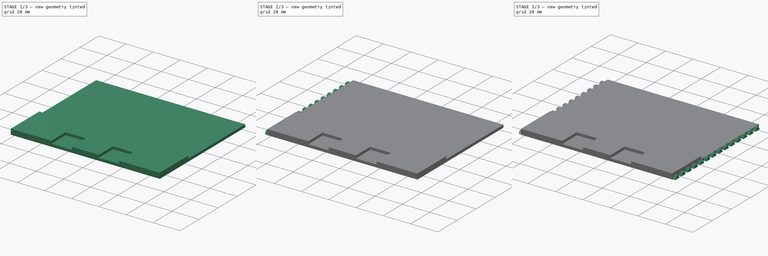
[diagram: build sequence overview — one tinted view per stage of 3, left to right]
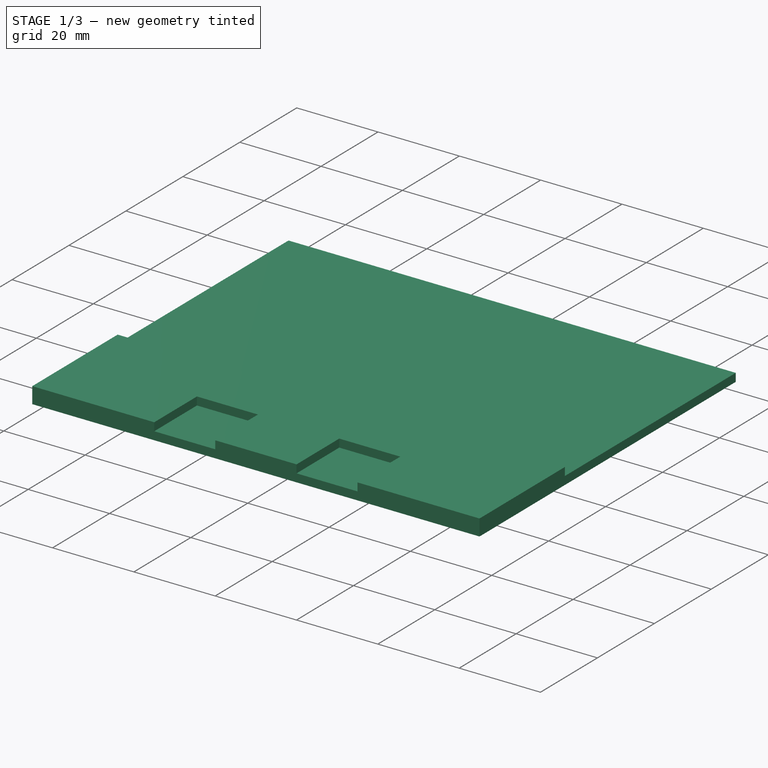
[diagram: stage 1 of 3 — iso view after this stage's code; geometry added in this stage tinted green]
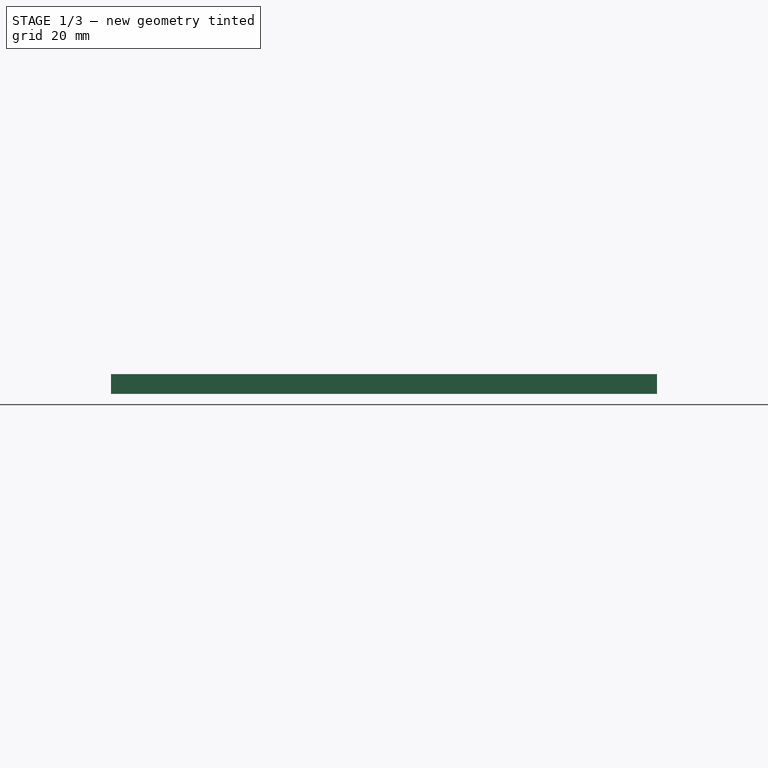
[diagram: stage 1 of 3 — front view after this stage's code; geometry added in this stage tinted green]
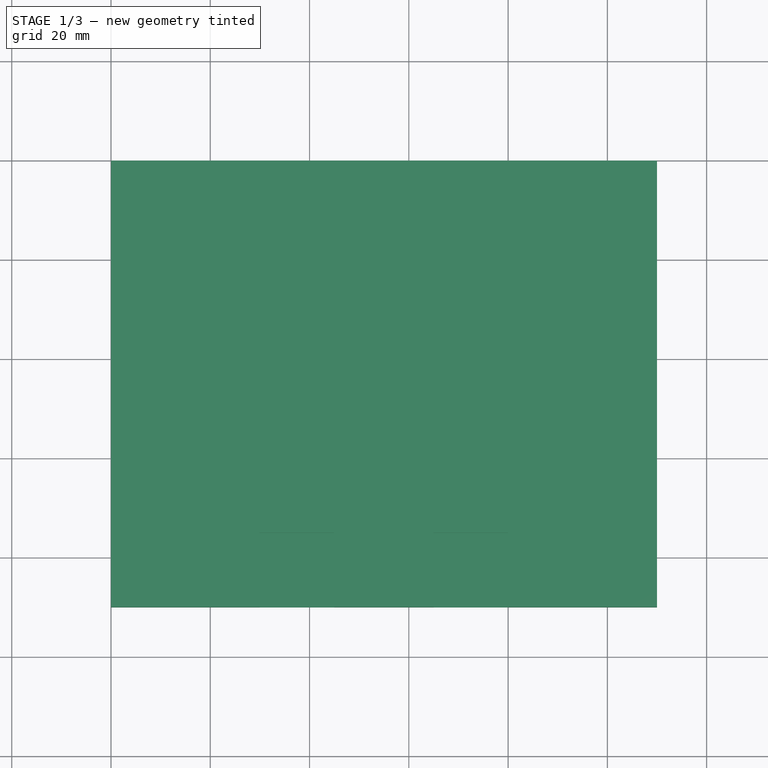
[diagram: stage 1 of 3 — top view after this stage's code; geometry added in this stage tinted green]
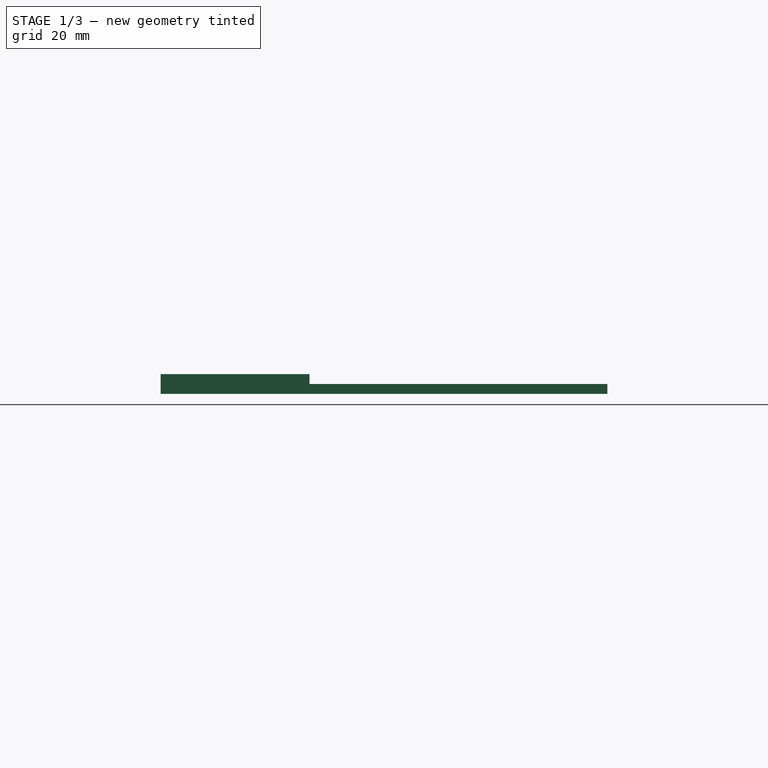
[diagram: stage 1 of 3 — right view after this stage's code; geometry added in this stage tinted green]
FCSTD DOCUMENT  (FreeCAD 0.19R24291 (Git))
Label: bunkerFrontSide
License: All rights reserved
LicenseURL: http://en.wikipedia.org/wiki/All_rights_reserved
objects: Sketcher::SketchObject×4, PartDesign::Pad×4, PartDesign::LinearPattern×2, PartDesign::Plane×1, PartDesign::Body×1
note: 16 computed .brp shape members not serialized (recipe doc carries the construction recipe); baked Part::Feature solids carry a one-line shape summary decoded from their .brp

FEATURE [Sketcher::SketchObject] Sketch
  FullyConstrained = true
  MapMode = 5
  Support = -> [XY_Plane]
  sketch-geometry (4):
    g0: LineSegment StartX=0 StartY=0 StartZ=0 EndX=110 EndY=0 EndZ=0
    g1: LineSegment StartX=110 StartY=0 StartZ=0 EndX=110 EndY=-90 EndZ=0
    g2: LineSegment StartX=110 StartY=-90 StartZ=0 EndX=0 EndY=-90 EndZ=0
    g3: LineSegment StartX=0 StartY=-90 StartZ=0 EndX=0 EndY=0 EndZ=0
  constraints (11):
    c: Coincident(g0,g1)
    c: Coincident(g1,g2)
    c: Coincident(g2,g3)
    c: Coincident(g3,g0)
    c: Horizontal(g0)
    c: Horizontal(g2)
    c: Vertical(g1)
    c: Vertical(g3)
    c: Coincident(g0,g-1)
    c: Distance(g1) = 90
    c: Distance(g0) = 110
FEATURE [PartDesign::Pad] Pad
  Direction = (1,1,1)
  Length = 2
  Length2 = 100
  Profile = -> Sketch
  Type = 0
FEATURE [Sketcher::SketchObject] Sketch001
  ExternalGeometry = -> [Pad]
  FullyConstrained = true
  MapMode = 5
  Placement = pos=(0,0,2) rot=(0,0,1;0rad)
  Support = -> [Pad]
  sketch-geometry (12):
    g0: LineSegment StartX=110 StartY=-90 StartZ=0 EndX=110 EndY=-60 EndZ=0
    g1: LineSegment StartX=110 StartY=-60 StartZ=0 EndX=0 EndY=-60 EndZ=0
    g2: LineSegment StartX=0 StartY=-60 StartZ=0 EndX=0 EndY=-90 EndZ=0
    g3: LineSegment StartX=0 StartY=-90 StartZ=0 EndX=30 EndY=-90 EndZ=0
    g4: LineSegment StartX=30 StartY=-90 StartZ=0 EndX=30 EndY=-75 EndZ=0
    g5: LineSegment StartX=30 StartY=-75 StartZ=0 EndX=45 EndY=-75 EndZ=0
    g6: LineSegment StartX=45 StartY=-75 StartZ=0 EndX=45 EndY=-90 EndZ=0
    g7: LineSegment StartX=45 StartY=-90 StartZ=0 EndX=65 EndY=-90 EndZ=0
    g8: LineSegment StartX=65 StartY=-90 StartZ=0 EndX=65 EndY=-75 EndZ=0
    g9: LineSegment StartX=65 StartY=-75 StartZ=0 EndX=80 EndY=-75 EndZ=0
    g10: LineSegment StartX=80 StartY=-75 StartZ=0 EndX=80 EndY=-90 EndZ=0
    g11: LineSegment StartX=80 StartY=-90 StartZ=0 EndX=110 EndY=-90 EndZ=0
  constraints (34):
    c: Coincident(g0,g1)
    c: Coincident(g1,g2)
    c: Horizontal(g1)
    c: Vertical(g0)
    c: Vertical(g2)
    c: Coincident(g0,g-3)
    c: Distance(g0) = 30
    c: Coincident(g2,g-3)
    c: Coincident(g2,g3)
    c: PointOnObject(g3,g-3)
    c: Coincident(g3,g4)
    c: Vertical(g4)
    c: Coincident(g4,g5)
    c: Horizontal(g5)
    c: Coincident(g5,g6)
    c: PointOnObject(g6,g-3)
    c: Vertical(g6)
    c: Coincident(g6,g7)
    c: PointOnObject(g7,g-3)
    c: Coincident(g7,g8)
    c: Vertical(g8)
    c: Coincident(g8,g9)
    c: Horizontal(g9)
    c: Coincident(g9,g10)
    c: PointOnObject(g10,g-3)
    c: Vertical(g10)
    c: Coincident(g10,g11)
    c: Coincident(g11,g0)
    c: Distance(g11) = 30
    c: Distance(g9) = 15
    c: Equal(g11,g3)
    c: Equal(g5,g9)
    c: Distance(g10) = 15
    c: Horizontal(g8,g5)
FEATURE [PartDesign::Pad] Pad001
  BaseFeature = -> Pad
  Direction = (1,1,1)
  Length = 2
  Length2 = 100
  Profile = -> Sketch001
  Type = 0
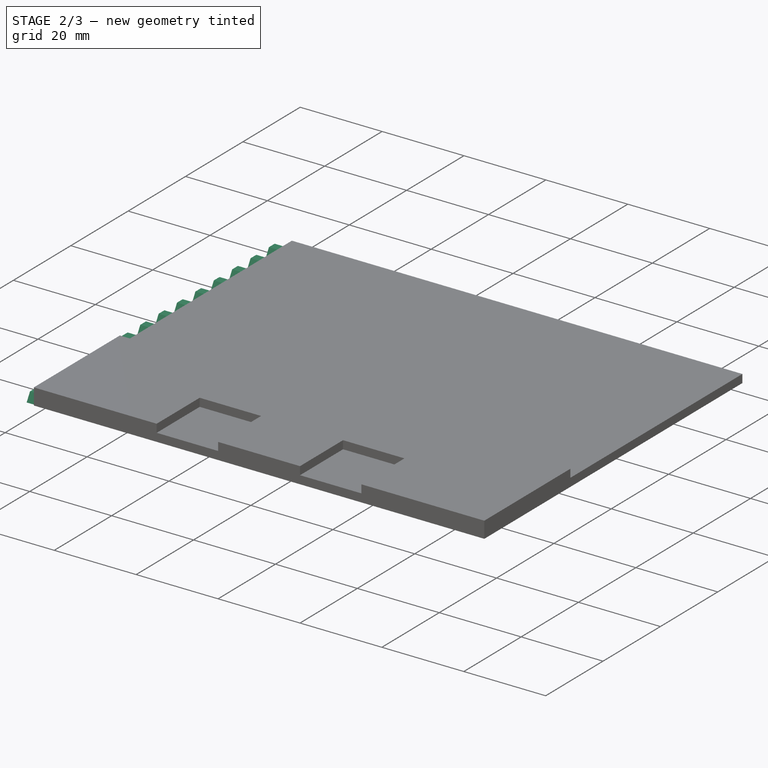
[diagram: stage 2 of 3 — iso view after this stage's code; geometry added in this stage tinted green]
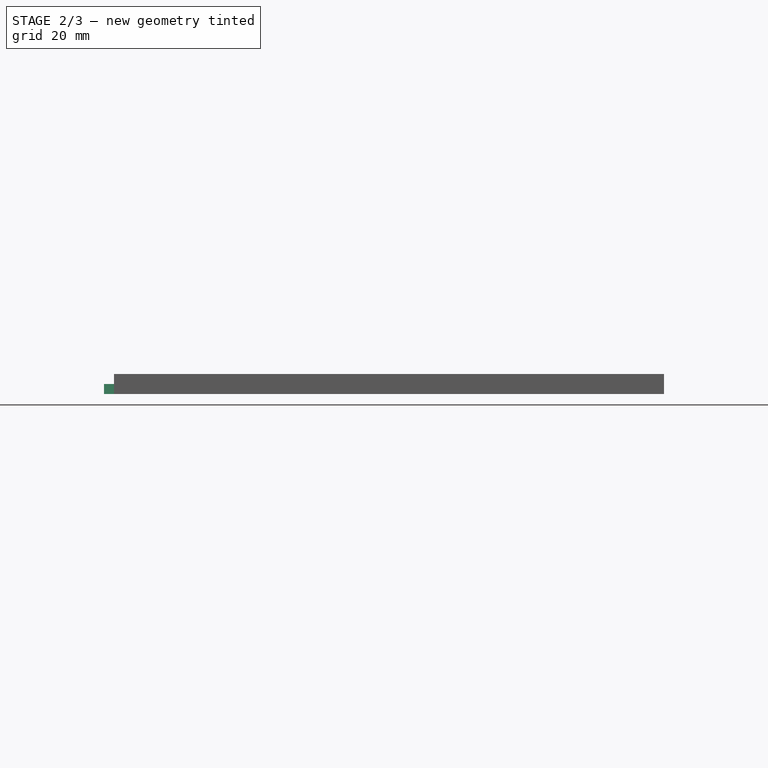
[diagram: stage 2 of 3 — front view after this stage's code; geometry added in this stage tinted green]
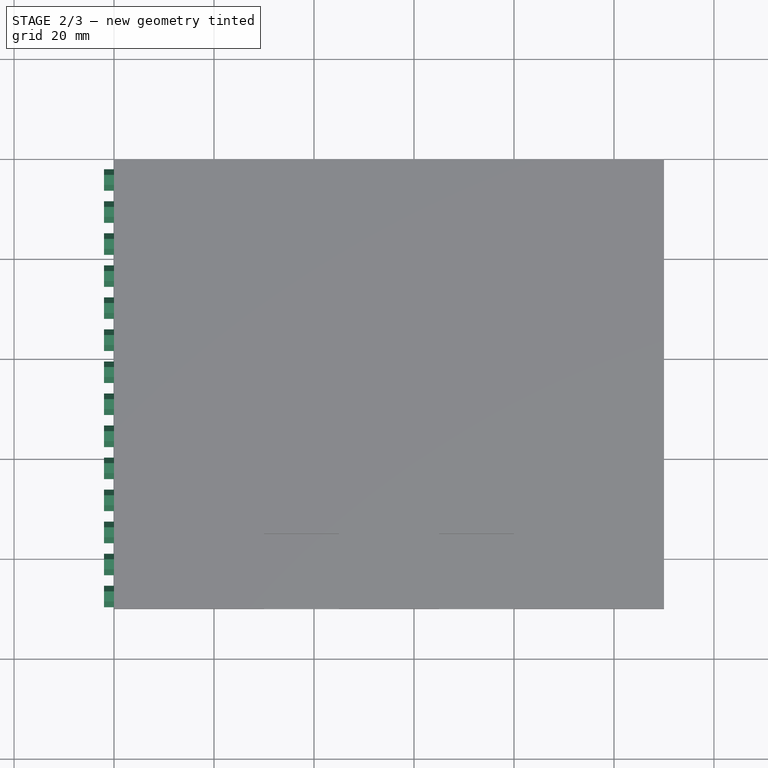
[diagram: stage 2 of 3 — top view after this stage's code; geometry added in this stage tinted green]
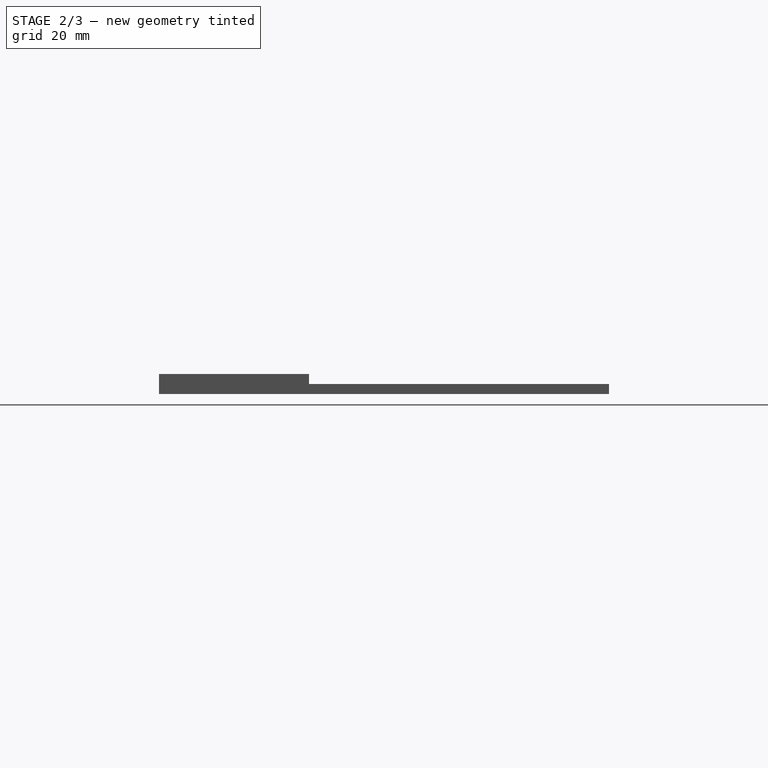
[diagram: stage 2 of 3 — right view after this stage's code; geometry added in this stage tinted green]
FEATURE [Sketcher::SketchObject] Sketch002
  ExternalGeometry = -> [Pad001]
  FullyConstrained = true
  MapMode = 5
  Placement = pos=(0,0,0) rot=(0.57735,-0.57735,-0.57735;2.0944rad)
  Support = -> [Pad001]
  sketch-geometry (4):
    g0: LineSegment StartX=2 StartY=0 StartZ=0 EndX=3.1547 EndY=2 EndZ=0
    g1: LineSegment StartX=3.1547 StartY=2 StartZ=0 EndX=5.1547 EndY=2 EndZ=0
    g2: LineSegment StartX=5.1547 StartY=2 StartZ=0 EndX=6.3094 EndY=0 EndZ=0
    g3: LineSegment StartX=6.3094 StartY=0 StartZ=0 EndX=2 EndY=0 EndZ=0
  constraints (12):
    c: PointOnObject(g0,g-3)
    c: PointOnObject(g0,g-4)
    c: Coincident(g0,g1)
    c: PointOnObject(g1,g-4)
    c: Coincident(g1,g2)
    c: PointOnObject(g2,g-3)
    c: Coincident(g2,g3)
    c: Coincident(g3,g0)
    c: Equal(g2,g0)
    c: Angle(g0,g-4) = 2.0944
    c: Distance(g1) = 2
    c: Distance(g0,g-1) = 2
FEATURE [PartDesign::Pad] Pad002
  BaseFeature = -> Pad001
  Direction = (1,1,1)
  Length = 2
  Length2 = 100
  Profile = -> Sketch002
  Type = 0
FEATURE [PartDesign::LinearPattern] LinearPattern
  BaseFeature = -> Pad002
  Direction = -> Sketch002 [H_Axis]
  Length = 83.3222
  Occurrences = 14
  Originals = -> [Pad002]
  expr: Length = <<bunkerLeftSide>>#Spreadsheet.dovetail_length * 13
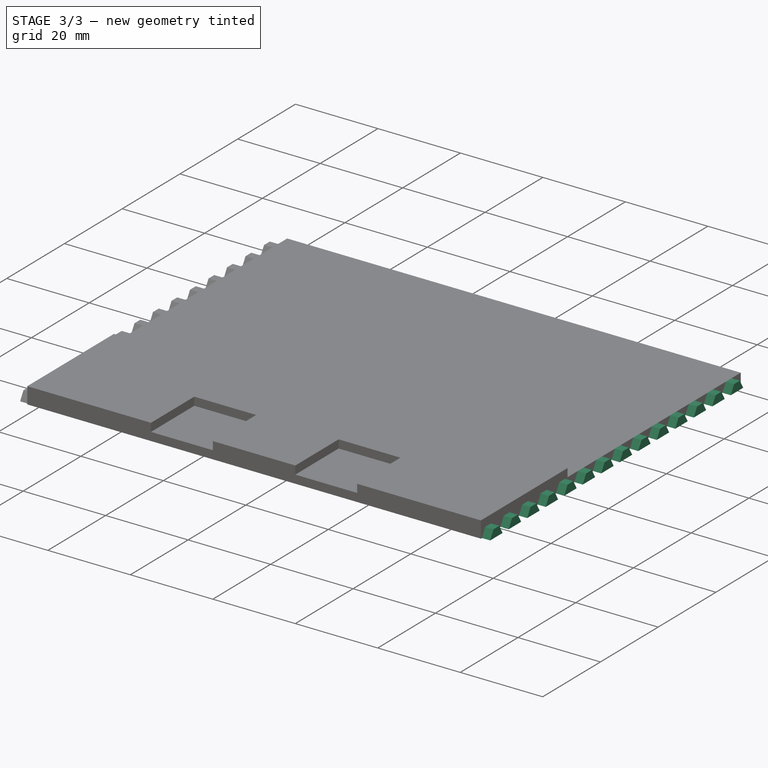
[diagram: stage 3 of 3 — iso view after this stage's code; geometry added in this stage tinted green]
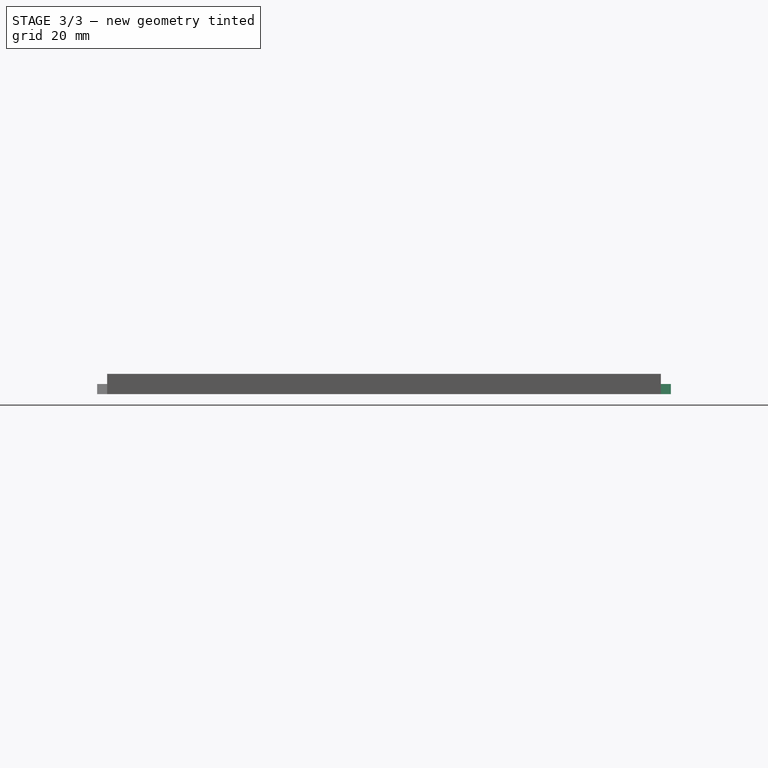
[diagram: stage 3 of 3 — front view after this stage's code; geometry added in this stage tinted green]
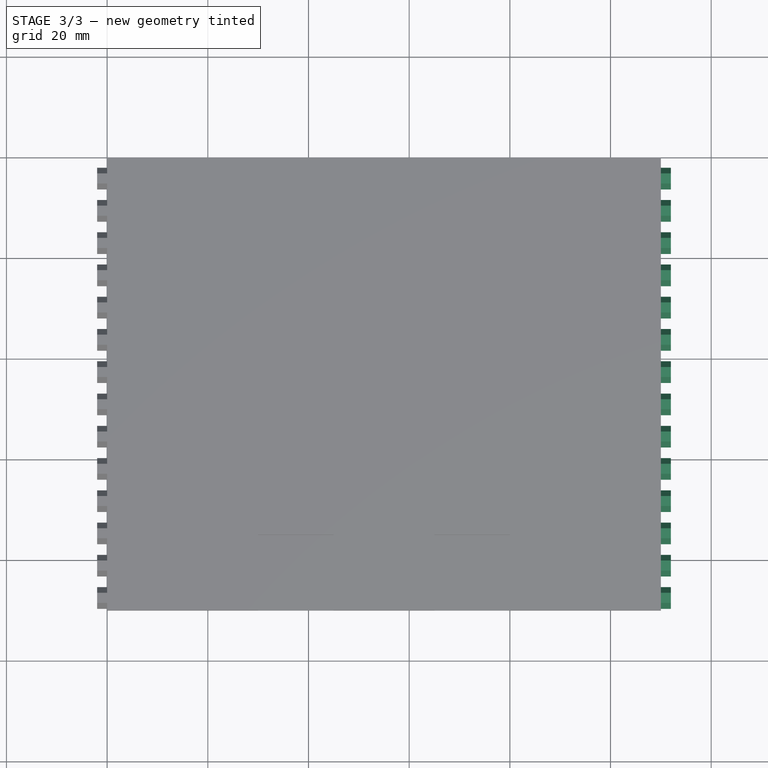
[diagram: stage 3 of 3 — top view after this stage's code; geometry added in this stage tinted green]
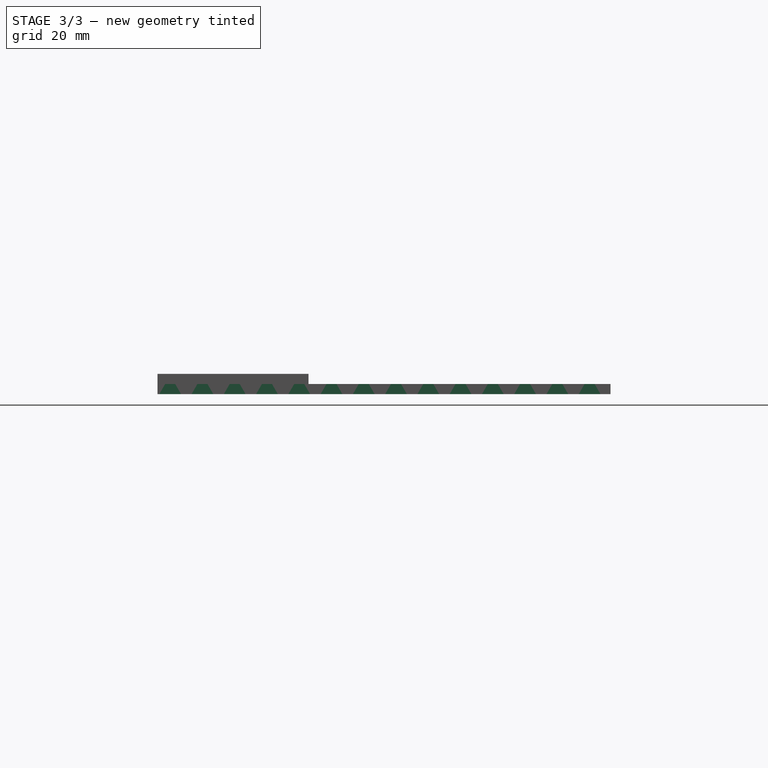
[diagram: stage 3 of 3 — right view after this stage's code; geometry added in this stage tinted green]
FEATURE [PartDesign::Plane] DatumPlane
  AttachmentOffset = pos=(0,0,-55) rot=(0,0,1;0rad)
  Length = 130.166
  MapMode = 5
  Placement = pos=(55,0,0) rot=(0.57735,-0.57735,-0.57735;2.0944rad)
  ResizeMode = 0
  Support = -> [LinearPattern]
  Width = 65.1658
FEATURE [Sketcher::SketchObject] Sketch003
  ExternalGeometry = -> [LinearPattern]
  FullyConstrained = true
  MapMode = 5
  Placement = pos=(110,0,0) rot=(0.57735,0.57735,0.57735;2.0944rad)
  Support = -> [LinearPattern]
  sketch-geometry (4):
    g0: LineSegment StartX=-2 StartY=0 StartZ=0 EndX=-3.1547 EndY=2 EndZ=0
    g1: LineSegment StartX=-3.1547 StartY=2 StartZ=0 EndX=-5.1547 EndY=2 EndZ=0
    g2: LineSegment StartX=-5.1547 StartY=2 StartZ=0 EndX=-6.3094 EndY=0 EndZ=0
    g3: LineSegment StartX=-6.3094 StartY=0 StartZ=0 EndX=-2 EndY=0 EndZ=0
  constraints (12):
    c: PointOnObject(g0,g-3)
    c: PointOnObject(g0,g-4)
    c: Coincident(g0,g1)
    c: PointOnObject(g1,g-4)
    c: Coincident(g1,g2)
    c: PointOnObject(g2,g-3)
    c: Coincident(g2,g3)
    c: Coincident(g3,g0)
    c: Distance(g1) = 2
    c: Angle(g0,g3) = 1.0472
    c: Distance(g-1,g0) = 2
    c: Equal(g0,g2)
FEATURE [PartDesign::Pad] Pad003
  BaseFeature = -> LinearPattern
  Direction = (1,1,1)
  Length = 2
  Length2 = 100
  Profile = -> Sketch003
  Type = 0
FEATURE [PartDesign::LinearPattern] LinearPattern001
  BaseFeature = -> Pad003
  Direction = -> Sketch003 [H_Axis]
  Length = 83.3222
  Occurrences = 14
  Originals = -> [Pad003]
  Reversed = true
  expr: Length = <<bunkerLeftSide>>#Spreadsheet.dovetail_length * 13
FEATURE [PartDesign::Body] Body
  Group = -> [Sketch,Pad,Sketch001,Pad001,Sketch002,Pad002,LinearPattern,DatumPlane,Sketch003,Pad003,LinearPattern001]
  Origin = -> Origin
  Tip = -> LinearPattern001
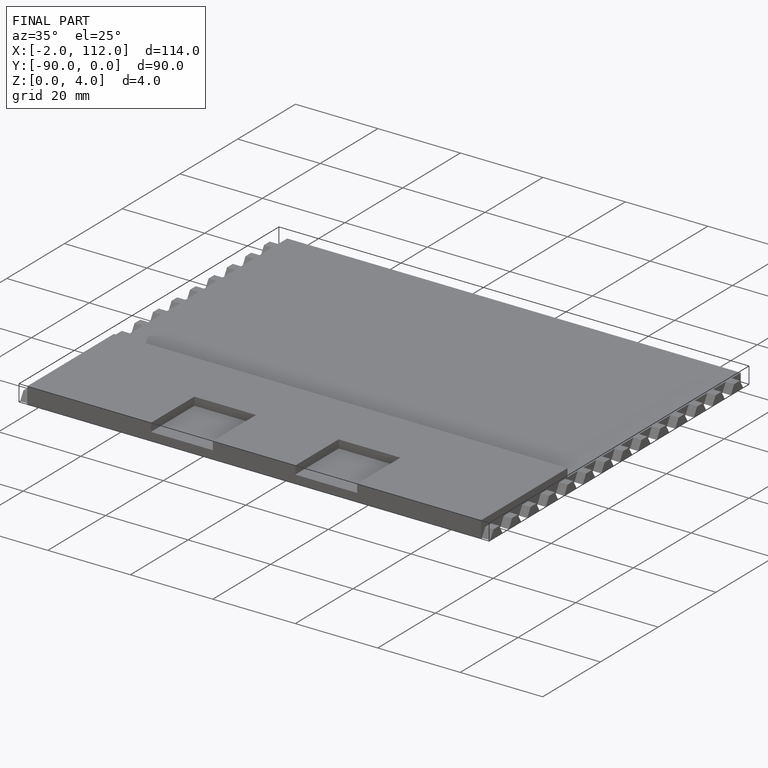
[diagram: finished part — iso view with bounding-box wireframe]
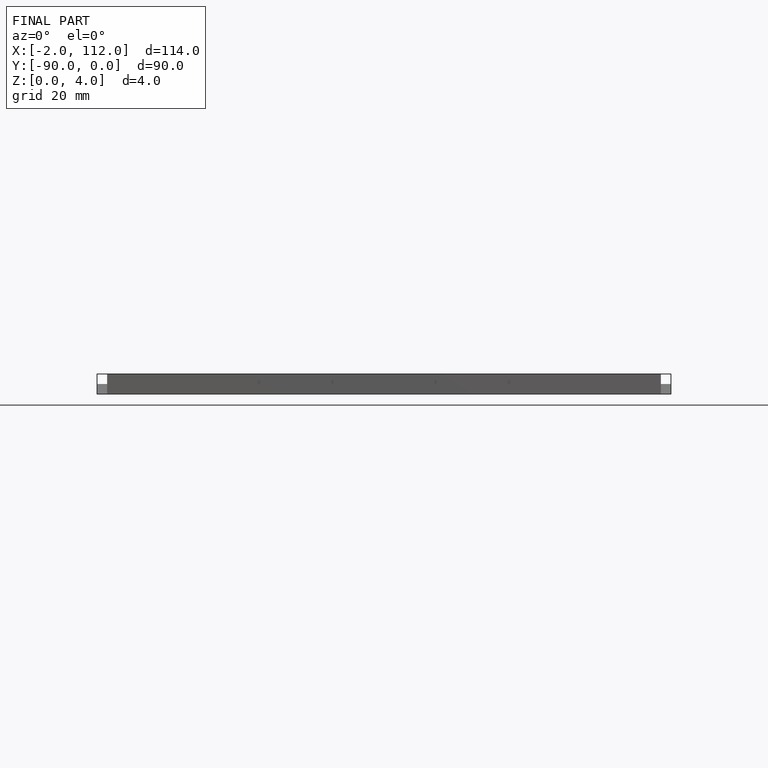
[diagram: finished part — front view with bounding-box wireframe]
